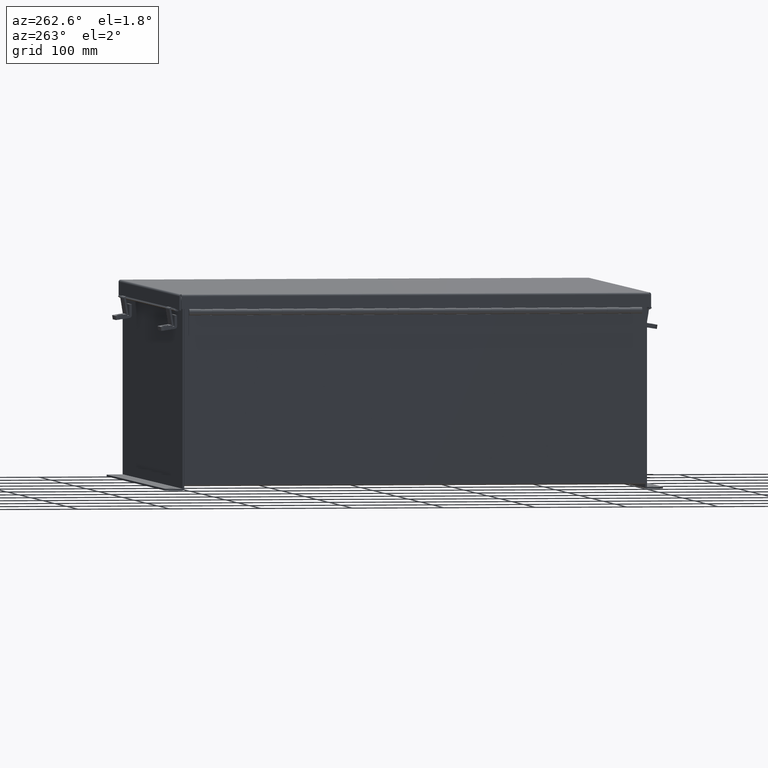
[diagram: clean part render]
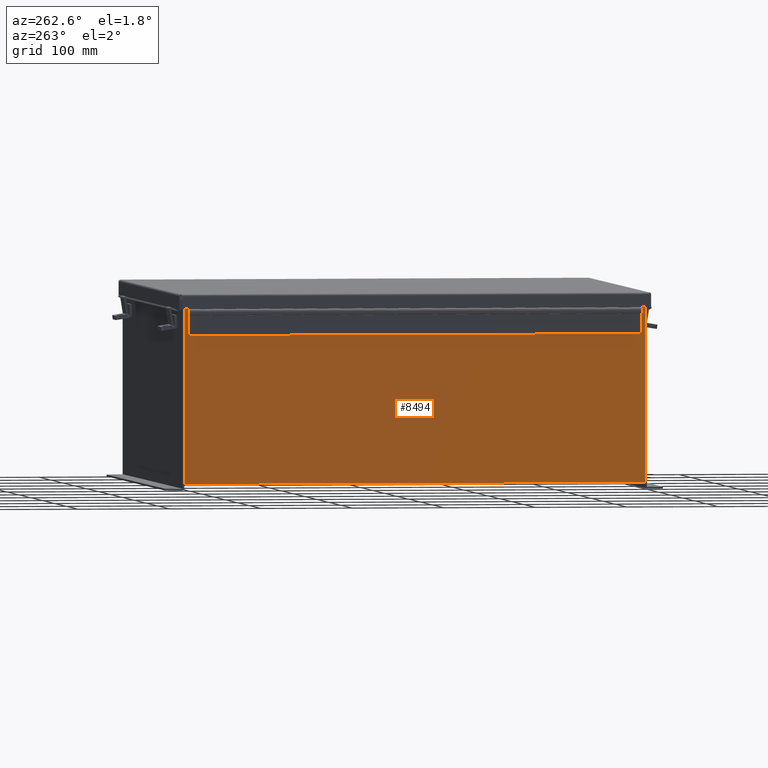
[diagram: same view with one face highlighted and labeled with its STEP entity id]
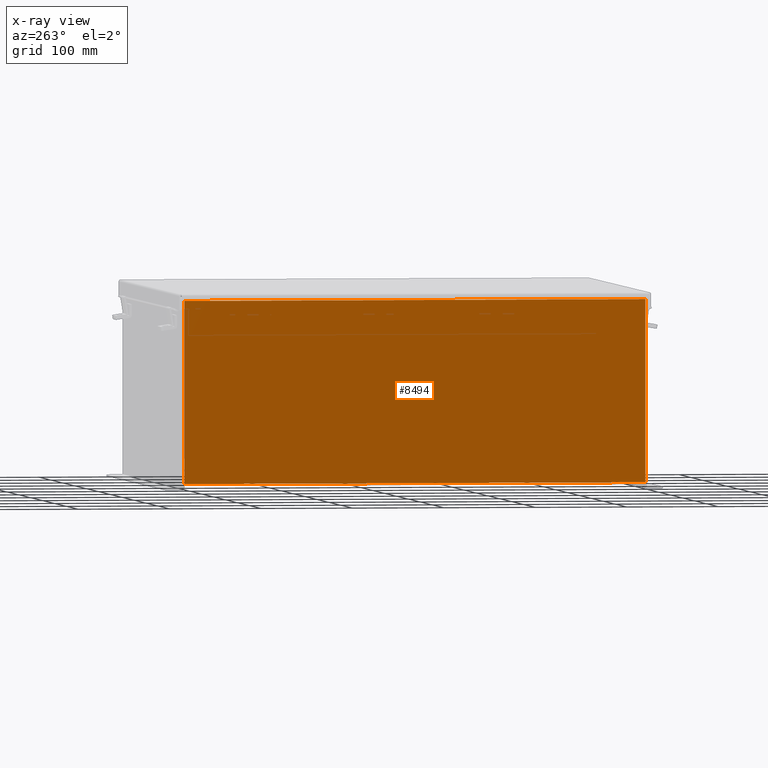
[diagram: x-ray of the same camera — body ghosted, the highlighted face saturated]
A machine part, auxiliary view. The second image highlights one B-rep face of the part: STEP entity #8494.
The next image is the same camera in x-ray: the body ghosted, the highlighted face saturated — about 0% of this face is hidden behind the body in this view.
In plain terms, the highlighted planar face has unit normal (1, 0, 0).
Its self-contained STEP definition (entity closure, byte-faithful):
#262 = CARTESIAN_POINT ( 'NONE',  ( -9.999999999999998200, 0.0000000000000000000, -3.645309666545751000E-014 ) ) ;
#580 = ORIENTED_EDGE ( 'NONE', *, *, #9459, .T. ) ;
#1185 = LINE ( 'NONE', #13444, #18551 ) ;
#1993 = DIRECTION ( 'NONE',  ( 3.618986973493534200E-015, 0.0000000000000000000, -1.000000000000000000 ) ) ;
#2992 = VERTEX_POINT ( 'NONE', #11034 ) ;
#4153 = EDGE_CURVE ( 'NONE', #18269, #4755, #1185, .T. ) ;
#4221 = ORIENTED_EDGE ( 'NONE', *, *, #7356, .F. ) ;
#4579 = LINE ( 'NONE', #4756, #18414 ) ;
#4755 = VERTEX_POINT ( 'NONE', #5328 ) ;
#4756 = CARTESIAN_POINT ( 'NONE',  ( -10.00000000000002700, -9.925299999999992900, 7.837599999999999200 ) ) ;
#5328 = CARTESIAN_POINT ( 'NONE',  ( -10.00000000000002700, -9.925299999999991100, 7.837599999999999200 ) ) ;
#6634 = ORIENTED_EDGE ( 'NONE', *, *, #4153, .T. ) ;
#7356 = EDGE_CURVE ( 'NONE', #18269, #2992, #15726, .T. ) ;
#8006 = DIRECTION ( 'NONE',  ( -3.618986973493534200E-015, 2.783836133456565100E-016, 1.000000000000000000 ) ) ;
#8120 = EDGE_LOOP ( 'NONE', ( #8997, #580, #4221, #6634 ) ) ;
#8494 = ADVANCED_FACE ( 'NONE', ( #12966 ), #15788, .F. ) ;
#8997 = ORIENTED_EDGE ( 'NONE', *, *, #17379, .T. ) ;
#9459 = EDGE_CURVE ( 'NONE', #15219, #2992, #18111, .T. ) ;
#10679 = AXIS2_PLACEMENT_3D ( 'NONE', #262, #12375, #1993 ) ;
#11034 = CARTESIAN_POINT ( 'NONE',  ( -9.999999999999998200, 9.925300000000001800, 0.01299999999999984300 ) ) ;
#11658 = CARTESIAN_POINT ( 'NONE',  ( -9.999999999999998200, 9.925300000000001800, 0.01299999999999982600 ) ) ;
#11929 = DIRECTION ( 'NONE',  ( -0.0000000000000000000, 1.000000000000000000, -0.0000000000000000000 ) ) ;
#12027 = DIRECTION ( 'NONE',  ( 3.618986973493534200E-015, 0.0000000000000000000, -1.000000000000000000 ) ) ;
#12375 = DIRECTION ( 'NONE',  ( 1.000000000000000000, 0.0000000000000000000, 3.618986973493534200E-015 ) ) ;
#12966 = FACE_OUTER_BOUND ( 'NONE', #8120, .T. ) ;
#13444 = CARTESIAN_POINT ( 'NONE',  ( -9.999999999999998200, -9.925299999999998200, -3.368710057187244300E-014 ) ) ;
#15148 = DIRECTION ( 'NONE',  ( 0.0000000000000000000, 1.000000000000000000, 0.0000000000000000000 ) ) ;
#15219 = VERTEX_POINT ( 'NONE', #19535 ) ;
#15726 = LINE ( 'NONE', #11658, #19793 ) ;
#15788 = PLANE ( 'NONE',  #10679 ) ;
#17094 = CARTESIAN_POINT ( 'NONE',  ( -9.999999999999998200, -9.925299999999992900, 0.01299999999999982600 ) ) ;
#17379 = EDGE_CURVE ( 'NONE', #4755, #15219, #4579, .T. ) ;
#17555 = VECTOR ( 'NONE', #12027, 39.37007874015748100 ) ;
#18111 = LINE ( 'NONE', #22396, #17555 ) ;
#18269 = VERTEX_POINT ( 'NONE', #17094 ) ;
#18414 = VECTOR ( 'NONE', #15148, 39.37007874015748100 ) ;
#18551 = VECTOR ( 'NONE', #8006, 39.37007874015748100 ) ;
#19535 = CARTESIAN_POINT ( 'NONE',  ( -10.00000000000002700, 9.925300000000001800, 7.837599999999999200 ) ) ;
#19793 = VECTOR ( 'NONE', #11929, 39.37007874015748100 ) ;
#22396 = CARTESIAN_POINT ( 'NONE',  ( -9.999999999999998200, 9.925300000000001800, -3.645309666545751000E-014 ) ) ;